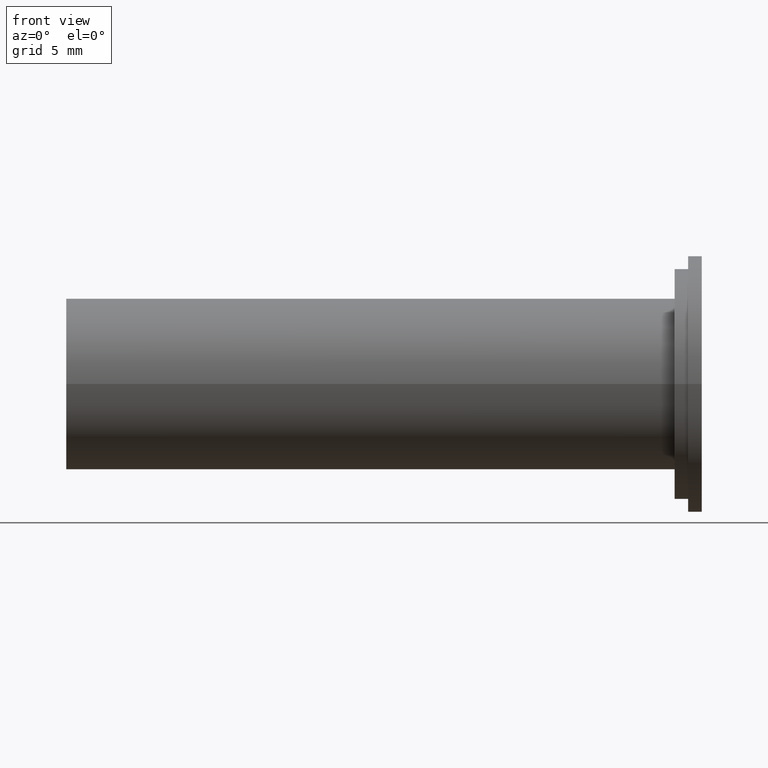
[diagram: clean part render]
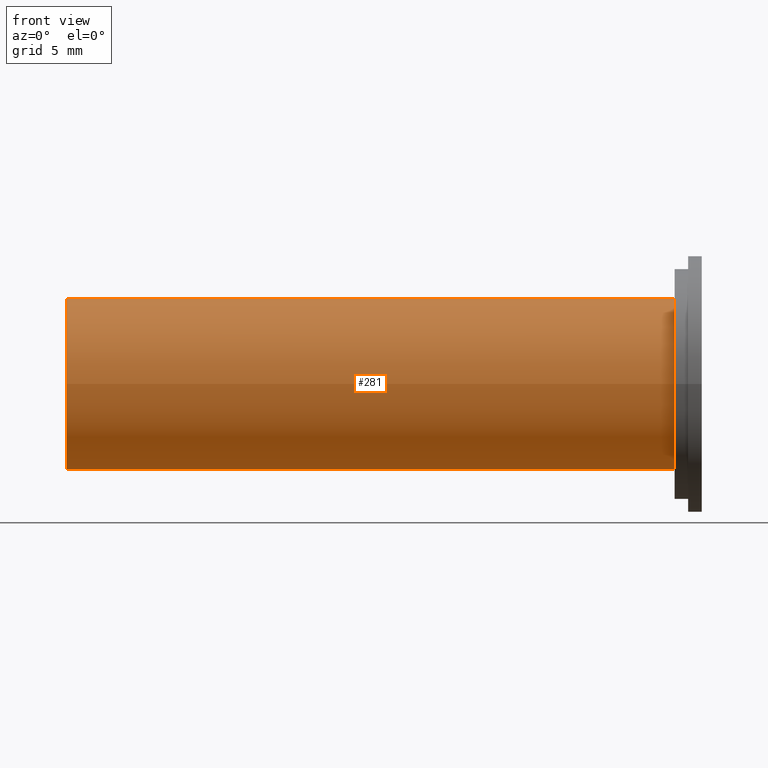
[diagram: same view with one face highlighted and labeled with its STEP entity id]
A machine part, front view. The second image highlights one B-rep face of the part: STEP entity #281.
In plain terms, the highlighted cylindrical surface (bore or boss wall) has radius 6.35 mm, axis along (1, 0, 0).
Its self-contained STEP definition (entity closure, byte-faithful):
#113=FACE_OUTER_BOUND('',#130,.T.);
#130=EDGE_LOOP('',(#253,#254,#255,#256));
#142=LINE('',#506,#152);
#152=VECTOR('',#415,6.35);
#166=CIRCLE('',#330,6.35);
#167=CIRCLE('',#332,6.35);
#185=VERTEX_POINT('',#501);
#186=VERTEX_POINT('',#504);
#208=EDGE_CURVE('',#185,#185,#166,.T.);
#209=EDGE_CURVE('',#186,#186,#167,.T.);
#210=EDGE_CURVE('',#186,#185,#142,.T.);
#253=ORIENTED_EDGE('',*,*,#209,.F.);
#254=ORIENTED_EDGE('',*,*,#210,.T.);
#255=ORIENTED_EDGE('',*,*,#208,.T.);
#256=ORIENTED_EDGE('',*,*,#210,.F.);
#268=CYLINDRICAL_SURFACE('',#331,6.35);
#281=ADVANCED_FACE('',(#113),#268,.T.);
#330=AXIS2_PLACEMENT_3D('',#502,#409,#410);
#331=AXIS2_PLACEMENT_3D('',#503,#411,#412);
#332=AXIS2_PLACEMENT_3D('',#505,#413,#414);
#409=DIRECTION('center_axis',(1.,0.,0.));
#410=DIRECTION('ref_axis',(0.,0.,-1.));
#411=DIRECTION('center_axis',(1.,0.,0.));
#412=DIRECTION('ref_axis',(0.,1.,0.));
#413=DIRECTION('center_axis',(1.,0.,0.));
#414=DIRECTION('ref_axis',(0.,0.,-1.));
#415=DIRECTION('',(-1.,0.,0.));
#501=CARTESIAN_POINT('',(-47.,-6.35,-7.7765071745857E-16));
#502=CARTESIAN_POINT('Origin',(-47.,0.,0.));
#503=CARTESIAN_POINT('Origin',(-24.5,0.,0.));
#504=CARTESIAN_POINT('',(-2.,-6.35,-7.7765071745857E-16));
#505=CARTESIAN_POINT('Origin',(-2.,0.,0.));
#506=CARTESIAN_POINT('',(-24.5,-6.35,-7.7765071745857E-16));